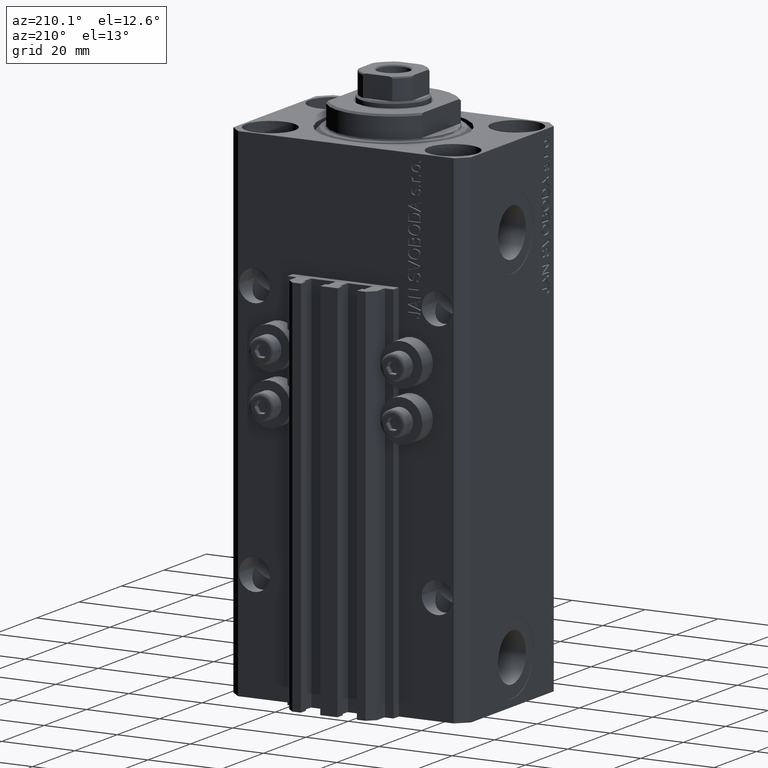
[diagram: clean part render]
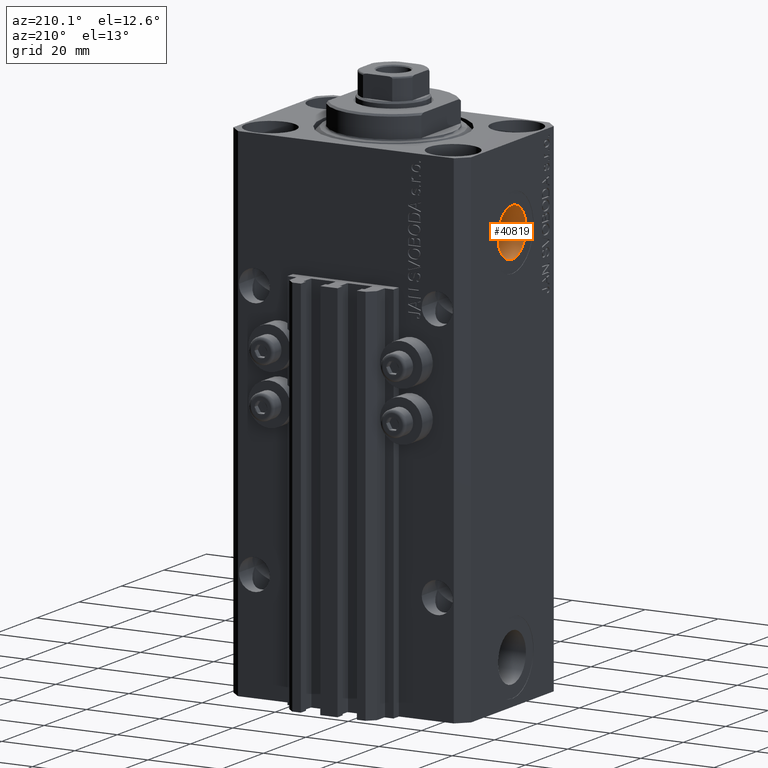
[diagram: same view with one face highlighted and labeled with its STEP entity id]
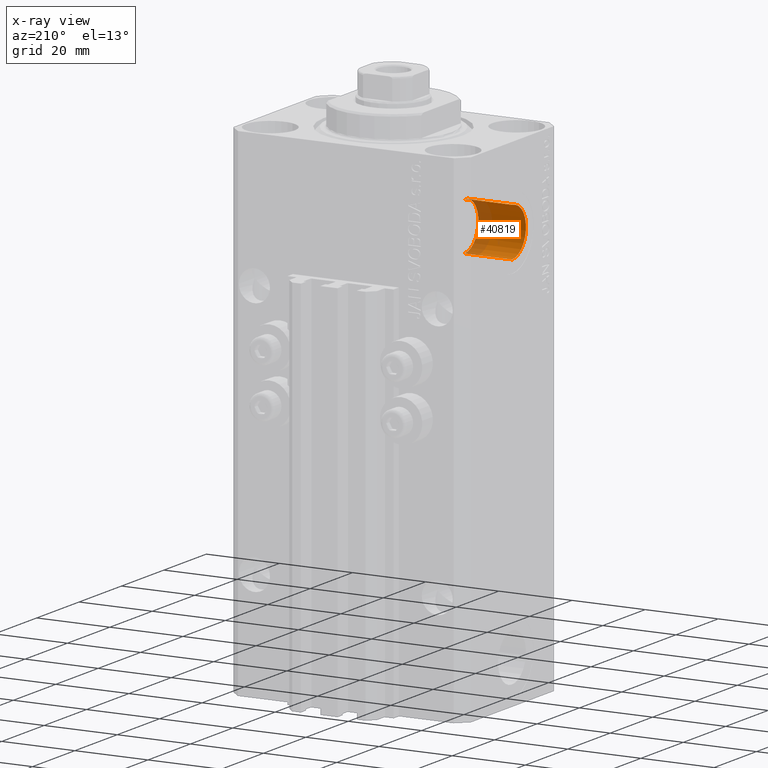
[diagram: x-ray of the same camera — body ghosted, the highlighted face saturated]
A machine part, auxiliary view. The second image highlights one B-rep face of the part: STEP entity #40819.
The next image is the same camera in x-ray: the body ghosted, the highlighted face saturated — about 29% of this face is hidden behind the body in this view.
In plain terms, the highlighted cylindrical surface (edge-blend (fillet) strip) has radius 6.58 mm, axis along (-1, -0, -0).
Its self-contained STEP definition (entity closure, byte-faithful):
#654 = CIRCLE ( 'NONE', #32970, 6.579999999999999183 ) ;
#2235 = VERTEX_POINT ( 'NONE', #19519 ) ;
#2257 = DIRECTION ( 'NONE',  ( 0.000000000000000000, 0.000000000000000000, 1.000000000000000000 ) ) ;
#2506 = CYLINDRICAL_SURFACE ( 'NONE', #29447, 6.579999999999999183 ) ;
#3512 = VERTEX_POINT ( 'NONE', #37248 ) ;
#4034 = ORIENTED_EDGE ( 'NONE', *, *, #28957, .F. ) ;
#5202 = DIRECTION ( 'NONE',  ( -1.000000000000000000, 0.000000000000000000, 0.000000000000000000 ) ) ;
#5798 = DIRECTION ( 'NONE',  ( -1.000000000000000000, -0.000000000000000000, -0.000000000000000000 ) ) ;
#6448 = VERTEX_POINT ( 'NONE', #27056 ) ;
#6839 = DIRECTION ( 'NONE',  ( 0.000000000000000000, 0.000000000000000000, 1.000000000000000000 ) ) ;
#9369 = ORIENTED_EDGE ( 'NONE', *, *, #9926, .T. ) ;
#9926 = EDGE_CURVE ( 'NONE', #19759, #2235, #12447, .T. ) ;
#9968 = FACE_OUTER_BOUND ( 'NONE', #37544, .T. ) ;
#11182 = CARTESIAN_POINT ( 'NONE',  ( -32.39999999999650271, 0.000000000000000000, -22.00000000000000000 ) ) ;
#11737 = CIRCLE ( 'NONE', #38712, 6.579999999999999183 ) ;
#12447 = LINE ( 'NONE', #23076, #23218 ) ;
#12548 = EDGE_CURVE ( 'NONE', #2235, #3512, #11737, .T. ) ;
#14135 = ORIENTED_EDGE ( 'NONE', *, *, #39372, .F. ) ;
#19519 = CARTESIAN_POINT ( 'NONE',  ( -32.39999999999650271, 8.058175938389579572E-16, -28.57999999999999829 ) ) ;
#19568 = CARTESIAN_POINT ( 'NONE',  ( -19.39999999999650271, 0.000000000000000000, -15.41999999999999993 ) ) ;
#19673 = DIRECTION ( 'NONE',  ( 0.000000000000000000, 0.000000000000000000, 1.000000000000000000 ) ) ;
#19759 = VERTEX_POINT ( 'NONE', #21312 ) ;
#21312 = CARTESIAN_POINT ( 'NONE',  ( -19.39999999999650271, 8.058175938389579572E-16, -28.57999999999999829 ) ) ;
#21674 = VECTOR ( 'NONE', #5798, 1000.000000000000000 ) ;
#23076 = CARTESIAN_POINT ( 'NONE',  ( -19.39999999999650271, 8.058175938389580558E-16, -28.57999999999999829 ) ) ;
#23218 = VECTOR ( 'NONE', #37800, 1000.000000000000000 ) ;
#26434 = CARTESIAN_POINT ( 'NONE',  ( -19.39999999999650271, 0.000000000000000000, -22.00000000000000000 ) ) ;
#27056 = CARTESIAN_POINT ( 'NONE',  ( -19.39999999999650271, 0.000000000000000000, -15.41999999999999993 ) ) ;
#28957 = EDGE_CURVE ( 'NONE', #19759, #6448, #654, .T. ) ;
#29022 = DIRECTION ( 'NONE',  ( -1.000000000000000000, 0.000000000000000000, 0.000000000000000000 ) ) ;
#29447 = AXIS2_PLACEMENT_3D ( 'NONE', #31442, #41424, #2257 ) ;
#31442 = CARTESIAN_POINT ( 'NONE',  ( -19.39999999999650271, 0.000000000000000000, -22.00000000000000000 ) ) ;
#32970 = AXIS2_PLACEMENT_3D ( 'NONE', #26434, #5202, #19673 ) ;
#34298 = ORIENTED_EDGE ( 'NONE', *, *, #12548, .T. ) ;
#37248 = CARTESIAN_POINT ( 'NONE',  ( -32.39999999999650271, 0.000000000000000000, -15.41999999999999993 ) ) ;
#37544 = EDGE_LOOP ( 'NONE', ( #4034, #9369, #34298, #14135 ) ) ;
#37800 = DIRECTION ( 'NONE',  ( -1.000000000000000000, -0.000000000000000000, -0.000000000000000000 ) ) ;
#38712 = AXIS2_PLACEMENT_3D ( 'NONE', #11182, #29022, #6839 ) ;
#39372 = EDGE_CURVE ( 'NONE', #6448, #3512, #45844, .T. ) ;
#40819 = ADVANCED_FACE ( 'NONE', ( #9968 ), #2506, .F. ) ;
#41424 = DIRECTION ( 'NONE',  ( -1.000000000000000000, -0.000000000000000000, -0.000000000000000000 ) ) ;
#45844 = LINE ( 'NONE', #19568, #21674 ) ;